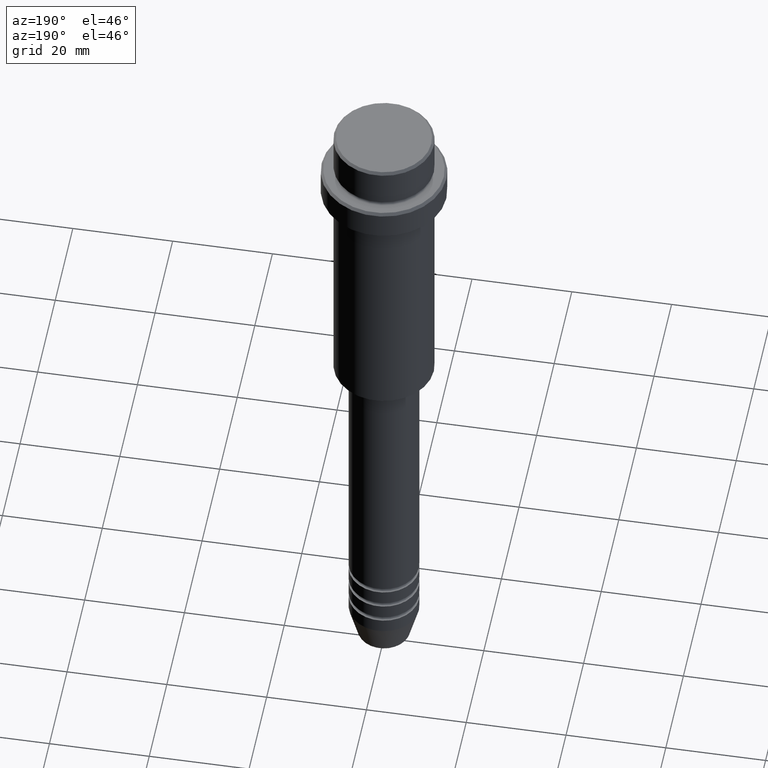
[diagram: clean part render]
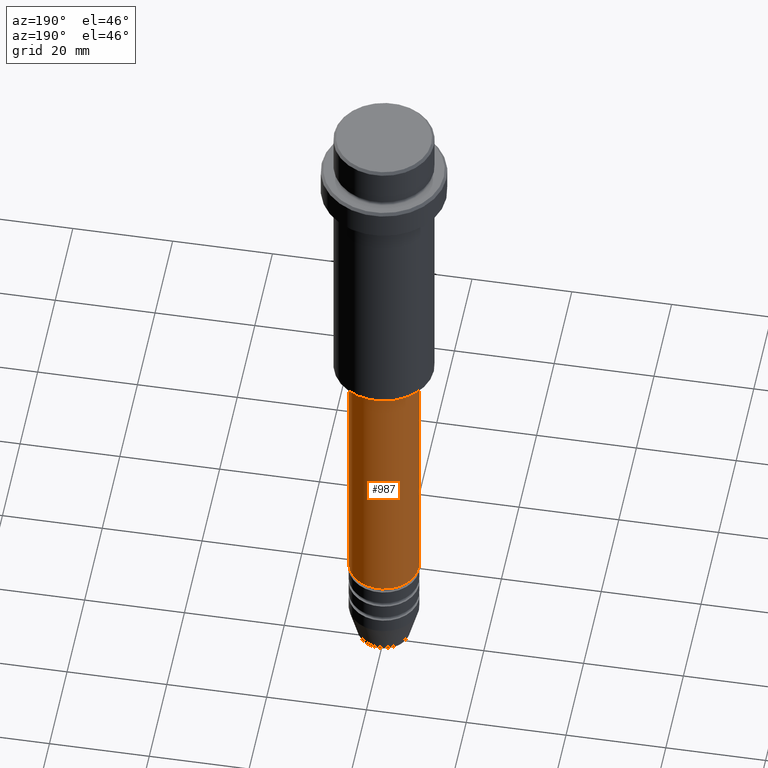
[diagram: same view with one face highlighted and labeled with its STEP entity id]
A machine part, auxiliary view. The second image highlights one B-rep face of the part: STEP entity #987.
In plain terms, the highlighted cylindrical surface (edge-blend (fillet) strip) has radius 7 mm, axis along (-0, -0, 1).
Its self-contained STEP definition (entity closure, byte-faithful):
#107 = CARTESIAN_POINT ( 'NONE',  ( 7.000000000000000000, 0.000000000000000000, -120.9999999999999005 ) ) ;
#118 = VERTEX_POINT ( 'NONE', #107 ) ;
#207 = DIRECTION ( 'NONE',  ( 1.000000000000000000, 0.000000000000000000, 0.000000000000000000 ) ) ;
#208 = CARTESIAN_POINT ( 'NONE',  ( 7.000000000000000000, 0.000000000000000000, 0.000000000000000000 ) ) ;
#229 = AXIS2_PLACEMENT_3D ( 'NONE', #607, #823, #1158 ) ;
#277 = ORIENTED_EDGE ( 'NONE', *, *, #426, .T. ) ;
#302 = DIRECTION ( 'NONE',  ( 1.000000000000000000, 0.000000000000000000, 0.000000000000000000 ) ) ;
#305 = CARTESIAN_POINT ( 'NONE',  ( -7.000000000000000000, 8.572527594031473190E-16, 0.000000000000000000 ) ) ;
#333 = DIRECTION ( 'NONE',  ( -0.000000000000000000, -0.000000000000000000, 1.000000000000000000 ) ) ;
#398 = VERTEX_POINT ( 'NONE', #840 ) ;
#426 = EDGE_CURVE ( 'NONE', #595, #398, #954, .T. ) ;
#435 = CARTESIAN_POINT ( 'NONE',  ( 7.000000000000000000, 0.000000000000000000, -66.00000000000001421 ) ) ;
#453 = EDGE_CURVE ( 'NONE', #118, #943, #1312, .T. ) ;
#531 = AXIS2_PLACEMENT_3D ( 'NONE', #838, #1046, #302 ) ;
#539 = DIRECTION ( 'NONE',  ( -0.000000000000000000, -0.000000000000000000, 1.000000000000000000 ) ) ;
#555 = CIRCLE ( 'NONE', #531, 7.000000000000000000 ) ;
#560 = CARTESIAN_POINT ( 'NONE',  ( 0.000000000000000000, 0.000000000000000000, 0.000000000000000000 ) ) ;
#578 = AXIS2_PLACEMENT_3D ( 'NONE', #560, #539, #207 ) ;
#595 = VERTEX_POINT ( 'NONE', #888 ) ;
#607 = CARTESIAN_POINT ( 'NONE',  ( 0.000000000000000000, 0.000000000000000000, -120.9999999999999005 ) ) ;
#642 = DIRECTION ( 'NONE',  ( -0.000000000000000000, -0.000000000000000000, 1.000000000000000000 ) ) ;
#666 = ORIENTED_EDGE ( 'NONE', *, *, #765, .T. ) ;
#754 = FACE_OUTER_BOUND ( 'NONE', #1147, .T. ) ;
#765 = EDGE_CURVE ( 'NONE', #118, #595, #847, .T. ) ;
#821 = EDGE_CURVE ( 'NONE', #943, #398, #555, .T. ) ;
#823 = DIRECTION ( 'NONE',  ( -0.000000000000000000, -0.000000000000000000, 1.000000000000000000 ) ) ;
#838 = CARTESIAN_POINT ( 'NONE',  ( 0.000000000000000000, 0.000000000000000000, -66.00000000000001421 ) ) ;
#840 = CARTESIAN_POINT ( 'NONE',  ( -7.000000000000000000, 8.572527594031473190E-16, -66.00000000000001421 ) ) ;
#847 = CIRCLE ( 'NONE', #229, 7.000000000000000000 ) ;
#888 = CARTESIAN_POINT ( 'NONE',  ( -7.000000000000000000, 8.572527594031473190E-16, -120.9999999999999005 ) ) ;
#943 = VERTEX_POINT ( 'NONE', #435 ) ;
#954 = LINE ( 'NONE', #305, #1309 ) ;
#985 = CYLINDRICAL_SURFACE ( 'NONE', #578, 7.000000000000000000 ) ;
#987 = ADVANCED_FACE ( 'NONE', ( #754 ), #985, .T. ) ;
#990 = VECTOR ( 'NONE', #333, 1000.000000000000000 ) ;
#1046 = DIRECTION ( 'NONE',  ( -0.000000000000000000, -0.000000000000000000, 1.000000000000000000 ) ) ;
#1147 = EDGE_LOOP ( 'NONE', ( #666, #277, #1314, #1229 ) ) ;
#1158 = DIRECTION ( 'NONE',  ( 1.000000000000000000, 0.000000000000000000, 0.000000000000000000 ) ) ;
#1229 = ORIENTED_EDGE ( 'NONE', *, *, #453, .F. ) ;
#1309 = VECTOR ( 'NONE', #642, 1000.000000000000000 ) ;
#1312 = LINE ( 'NONE', #208, #990 ) ;
#1314 = ORIENTED_EDGE ( 'NONE', *, *, #821, .F. ) ;